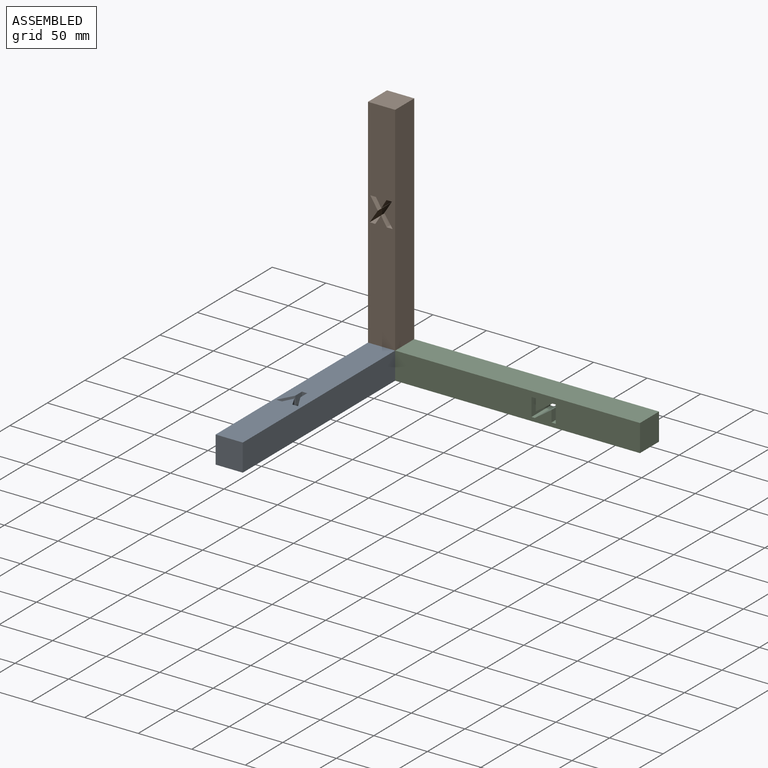
[diagram: assembled view]
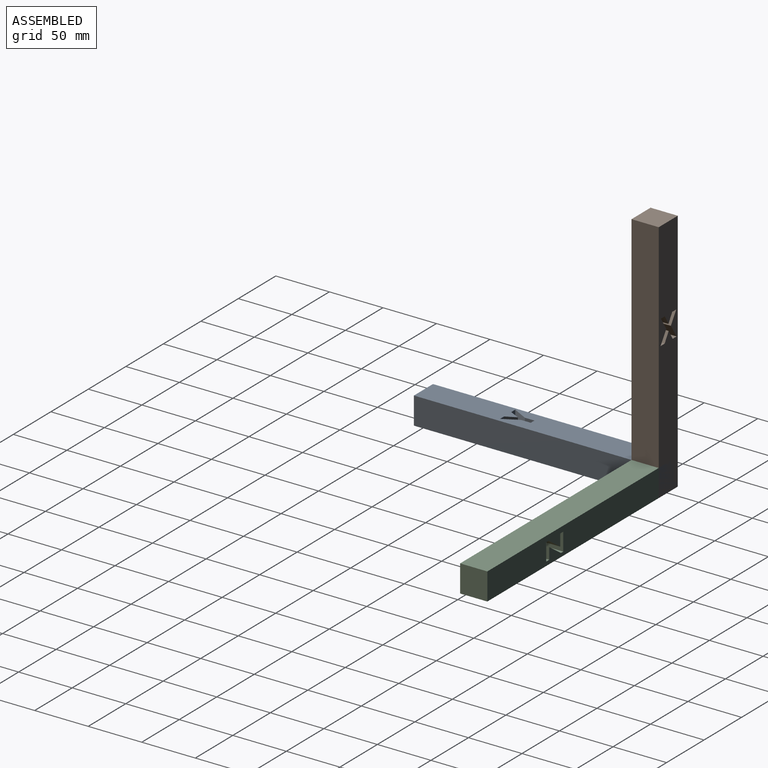
[diagram: assembled view, second angle]
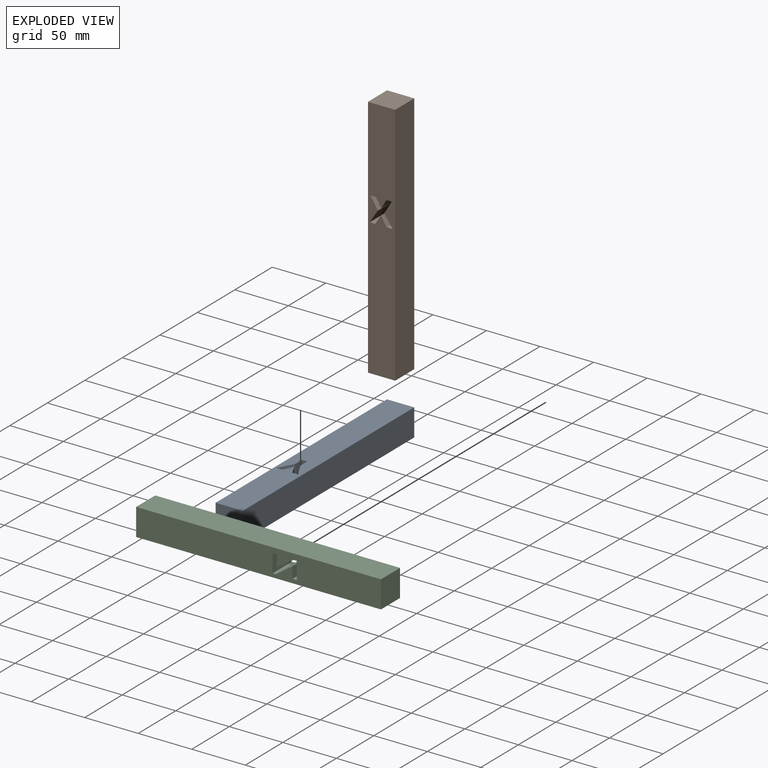
[diagram: exploded view]
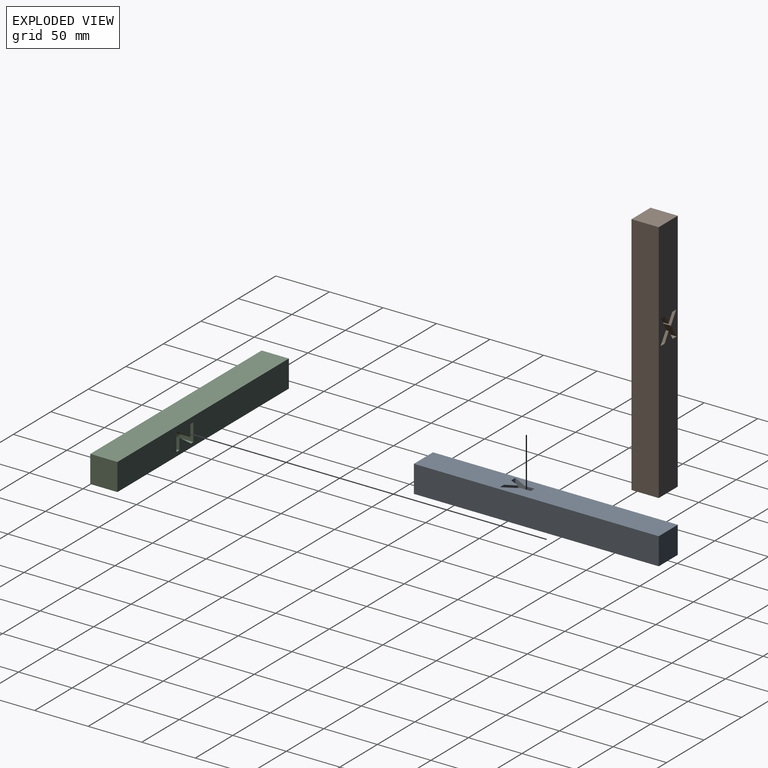
[diagram: exploded view, second angle]
ASSEMBLY  parts=3 mates=6
PART A: 15 faces, bbox 25.4x25.4x228.6 mm
  f0: plane 228.6x25.4mm, normal (0,-1,0), area 5628mm2, adj f2,f3,f4,f5,f6,f7,f8,f9
  f1: plane 228.6x25.4mm, normal (0,1,0), area 5628mm2, adj f2,f3,f4,f5,f6,f7,f8,f9
  f2: plane 228.6x25.4mm, normal (1,0,0), area 5806.4mm2, adj f0,f1,f4,f5
  f3: plane 228.6x25.4mm, normal (-1,0,0), area 5806.4mm2, adj f0,f1,f4,f5
  f4: plane 25.4x25.4mm, normal (0,0,1), area 645.2mm2, adj f0,f1,f2,f3
  f5: plane 25.4x25.4mm, normal (0,0,-1), area 645.2mm2, adj f0,f1,f2,f3
  f6: plane 25.4x9.59mm, normal (-0.89,0,-0.45), area 272.7mm2, adj f0,f1,f7,f14
  f7: plane 25.4x5.35mm, normal (0,0,-1), area 136mm2, adj f0,f1,f6,f8
  f8: plane 25.4x14.39mm, normal (0.88,0,0.47), area 414.9mm2, adj f0,f1,f7,f9
  f9: plane 25.4x8.91mm, normal (1,0,0), area 226.3mm2, adj f0,f1,f8,f10
  f10: plane 25.4x4.91mm, normal (0,0,1), area 124.6mm2, adj f0,f1,f9,f11
  f11: plane 25.4x9.07mm, normal (-1,0,0), area 230.3mm2, adj f0,f1,f10,f12
  f12: plane 25.4x14.23mm, normal (-0.88,0,0.48), area 411.4mm2, adj f0,f1,f11,f13
  f13: plane 25.4x5.32mm, normal (0,0,-1), area 135.2mm2, adj f0,f1,f12,f14
  f14: plane 25.4x9.59mm, normal (0.89,0,-0.45), area 273.1mm2, adj f0,f1,f6,f13
PART B: 18 faces, bbox 25.4x25.4x228.6 mm
  f0: plane 228.6x25.4mm, normal (0,-1,0), area 5583.7mm2, adj f2,f3,f4,f5,f6,f7,f8,f9
  f1: plane 228.6x25.4mm, normal (0,1,0), area 5583.7mm2, adj f2,f3,f4,f5,f6,f7,f8,f9
  f2: plane 228.6x25.4mm, normal (1,0,0), area 5806.4mm2, adj f0,f1,f4,f5
  f3: plane 228.6x25.4mm, normal (-1,0,0), area 5806.4mm2, adj f0,f1,f4,f5
  f4: plane 25.4x25.4mm, normal (0,0,1), area 645.2mm2, adj f0,f1,f2,f3
  f5: plane 25.4x25.4mm, normal (0,0,-1), area 645.2mm2, adj f0,f1,f2,f3
  f6: plane 25.4x11.56mm, normal (-0.83,0,-0.56), area 353.5mm2, adj f0,f1,f7,f17
  f7: plane 25.4x11.37mm, normal (-0.85,0,0.53), area 341.9mm2, adj f0,f1,f6,f8
  f8: plane 25.4x5.24mm, normal (0,0,-1), area 133mm2, adj f0,f1,f7,f9
  f9: plane 25.4x8.25mm, normal (0.86,0,-0.51), area 243.1mm2, adj f0,f1,f8,f10
  f10: plane 25.4x8.25mm, normal (-0.86,0,-0.51), area 244.3mm2, adj f0,f1,f9,f11
  f11: plane 25.4x5.37mm, normal (0,0,-1), area 136.3mm2, adj f0,f1,f10,f12
  f12: plane 25.4x11.11mm, normal (0.84,0,0.54), area 335.1mm2, adj f0,f1,f11,f13
  f13: plane 25.4x11.83mm, normal (0.84,0,-0.54), area 357.2mm2, adj f0,f1,f12,f14
  f14: plane 25.4x5.21mm, normal (0,0,1), area 132.3mm2, adj f0,f1,f13,f15
  f15: plane 25.4x8.67mm, normal (-0.85,0,0.52), area 258.6mm2, adj f0,f1,f14,f16
  f16: plane 25.4x8.67mm, normal (0.85,0,0.52), area 258.6mm2, adj f0,f1,f15,f17
  f17: plane 25.4x5.55mm, normal (0,0,1), area 141mm2, adj f0,f1,f6,f16
PART C: 16 faces, bbox 25.4x25.4x228.6 mm
  f0: plane 228.6x25.4mm, normal (0,-1,0), area 5600.8mm2, adj f2,f3,f4,f5,f6,f7,f8,f9
  f1: plane 228.6x25.4mm, normal (0,1,0), area 5600.8mm2, adj f2,f3,f4,f5,f6,f7,f8,f9
  f2: plane 228.6x25.4mm, normal (1,0,0), area 5806.4mm2, adj f0,f1,f4,f5
  f3: plane 228.6x25.4mm, normal (-1,0,0), area 5806.4mm2, adj f0,f1,f4,f5
  f4: plane 25.4x25.4mm, normal (0,0,1), area 645.2mm2, adj f0,f1,f2,f3
  f5: plane 25.4x25.4mm, normal (0,0,-1), area 645.2mm2, adj f0,f1,f2,f3
  f6: plane 25.4x3.96mm, normal (-1,0,0), area 100.6mm2, adj f0,f1,f7,f15
  f7: plane 25.4x11.13mm, normal (0,0,-1), area 282.6mm2, adj f0,f1,f6,f8
  f8: plane 25.4x15.57mm, normal (-0.82,0,0.57), area 481.8mm2, adj f0,f1,f7,f9
  f9: plane 25.4x3.1mm, normal (-1,0,0), area 78.6mm2, adj f0,f1,f8,f10
  f10: plane 25.4x16.25mm, normal (0,0,-1), area 412.7mm2, adj f0,f1,f9,f11
  f11: plane 25.4x3.96mm, normal (1,0,0), area 100.6mm2, adj f0,f1,f10,f12
  f12: plane 25.4x10.55mm, normal (0,0,1), area 268mm2, adj f0,f1,f11,f13
  f13: plane 25.4x15.56mm, normal (0.82,0,-0.57), area 481.7mm2, adj f0,f1,f12,f14
  f14: plane 25.4x3.11mm, normal (1,0,0), area 79mm2, adj f0,f1,f13,f15
  f15: plane 25.4x16.84mm, normal (0,0,1), area 427.7mm2, adj f0,f1,f6,f14
PLACE A rot(axis=(1,0,0),90deg) t=(-64.78,49,0.69)mm
PLACE B t=(-39.38,36.3,-12.01)mm fixed
PLACE C rot(axis=(-0.71,0,-0.71),180deg) t=(-26.68,36.3,-50.11)mm
MATE planar C.f3 <-> A.f0  axis (0,0,-1) through (-26.68,23.6,-12.01)mm
MATE planar C.f0 <-> B.f1  axis (0,1,0) through (87.62,49,13.39)mm
MATE planar A.f5 <-> B.f1  axis (0,1,0) through (-39.38,49,0.69)mm
MATE planar A.f0 <-> B.f5  axis (0,0,-1) through (-39.36,-64.46,-12.01)mm
MATE planar C.f5 <-> B.f2  axis (-1,0,0) through (-26.68,36.3,0.69)mm
MATE planar B.f2 <-> A.f2  axis (1,0,0) through (-26.68,49,-12.01)mm
